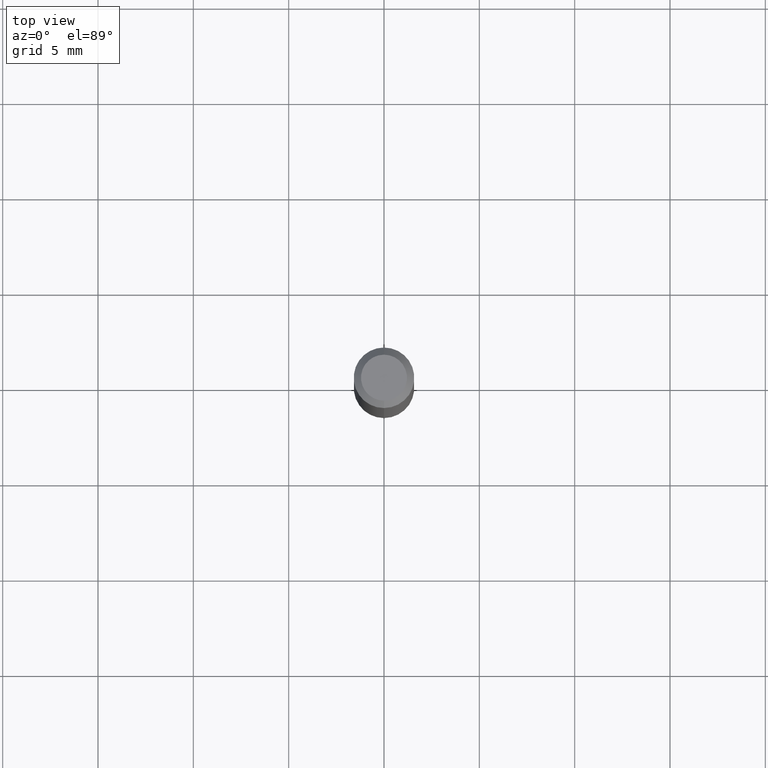
[diagram: clean part render]
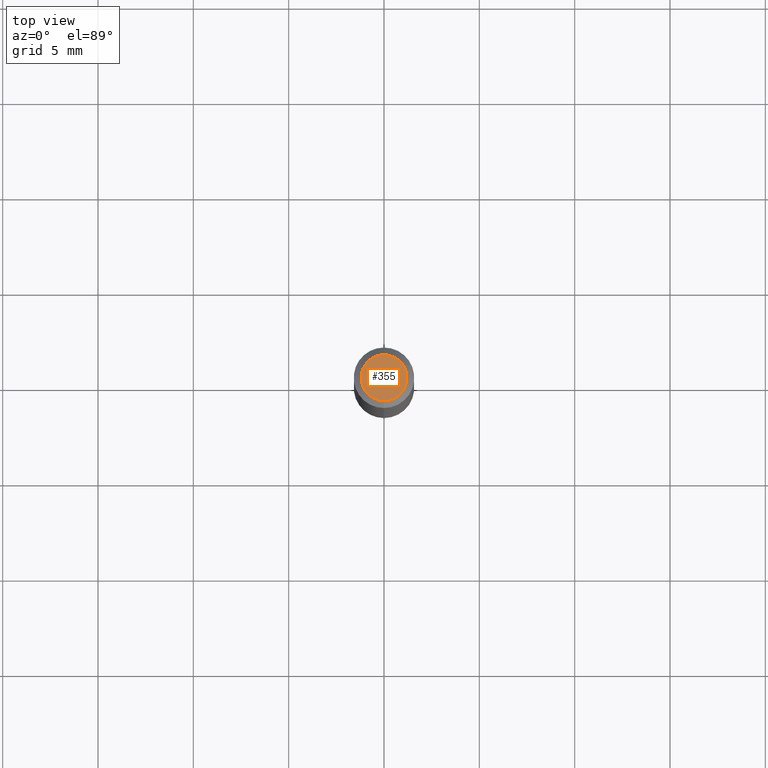
[diagram: same view with one face highlighted and labeled with its STEP entity id]
A machine part, top view. The second image highlights one B-rep face of the part: STEP entity #355.
In plain terms, the highlighted planar face has unit normal (0, -0, -1).
Its self-contained STEP definition (entity closure, byte-faithful):
#14 = CARTESIAN_POINT ( 'NONE',  ( 3.316907271900976096E-16, 0.04749999999999999362, -1.702749386738960268E-16 ) ) ;
#63 = CIRCLE ( 'NONE', #278, 0.04749999999999999362 ) ;
#67 = VERTEX_POINT ( 'NONE', #144 ) ;
#70 = CARTESIAN_POINT ( 'NONE',  ( 2.167064733449136594E-46, -3.093950540163322949E-32, -8.861489025968927534E-18 ) ) ;
#93 = ORIENTED_EDGE ( 'NONE', *, *, #485, .T. ) ;
#104 = DIRECTION ( 'NONE',  ( -6.982962677686266711E-15, -1.000000000000000000, 3.491456719177085880E-15 ) ) ;
#124 = AXIS2_PLACEMENT_3D ( 'NONE', #14, #326, #443 ) ;
#133 = CARTESIAN_POINT ( 'NONE',  ( 3.840629472727447874E-16, 0.04749999999999999362, -1.747056831868805136E-16 ) ) ;
#144 = CARTESIAN_POINT ( 'NONE',  ( -3.773273898774340269E-16, -0.04749999999999999362, 1.569827051349426154E-16 ) ) ;
#196 = ORIENTED_EDGE ( 'NONE', *, *, #321, .T. ) ;
#222 = DIRECTION ( 'NONE',  ( -2.445485998006059761E-29, 3.491456719177085880E-15, 1.000000000000000000 ) ) ;
#260 = DIRECTION ( 'NONE',  ( -6.982962677686266711E-15, -1.000000000000000000, 3.491456719177085880E-15 ) ) ;
#278 = AXIS2_PLACEMENT_3D ( 'NONE', #70, #222, #104 ) ;
#284 = FACE_OUTER_BOUND ( 'NONE', #488, .T. ) ;
#321 = EDGE_CURVE ( 'NONE', #67, #474, #63, .T. ) ;
#326 = DIRECTION ( 'NONE',  ( 2.445485998006059761E-29, -3.491456719177085486E-15, -1.000000000000000000 ) ) ;
#355 = ADVANCED_FACE ( 'NONE', ( #284 ), #439, .F. ) ;
#357 = AXIS2_PLACEMENT_3D ( 'NONE', #370, #378, #260 ) ;
#361 = CIRCLE ( 'NONE', #357, 0.04749999999999999362 ) ;
#370 = CARTESIAN_POINT ( 'NONE',  ( 2.167064733449136594E-46, -3.093950540163322949E-32, -8.861489025968927534E-18 ) ) ;
#378 = DIRECTION ( 'NONE',  ( -2.445485998006059761E-29, 3.491456719177085880E-15, 1.000000000000000000 ) ) ;
#439 = PLANE ( 'NONE',  #124 ) ;
#443 = DIRECTION ( 'NONE',  ( 6.982962677686265922E-15, 1.000000000000000000, -3.491456719177085486E-15 ) ) ;
#474 = VERTEX_POINT ( 'NONE', #133 ) ;
#485 = EDGE_CURVE ( 'NONE', #474, #67, #361, .T. ) ;
#488 = EDGE_LOOP ( 'NONE', ( #93, #196 ) ) ;